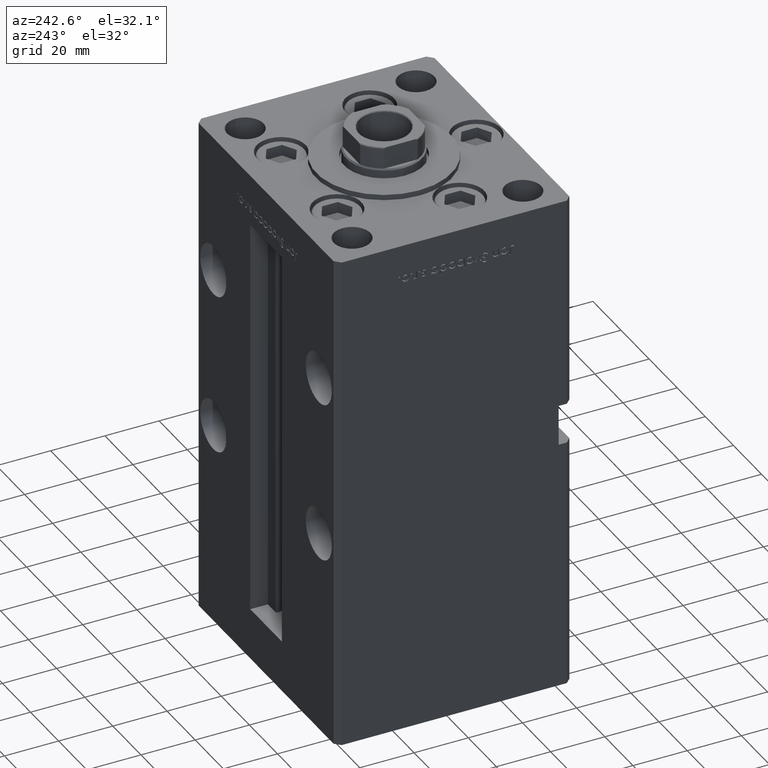
[diagram: clean part render]
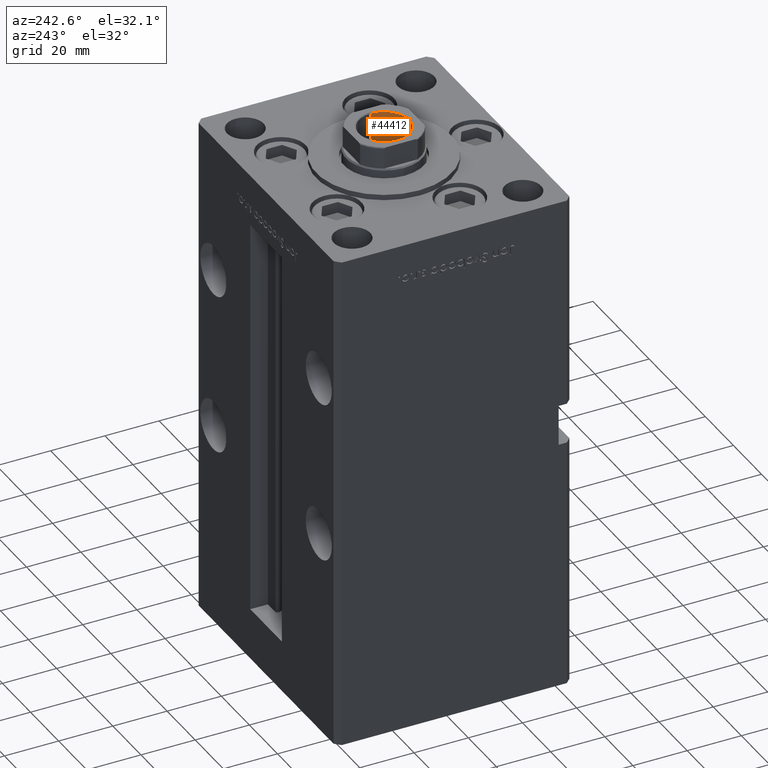
[diagram: same view with one face highlighted and labeled with its STEP entity id]
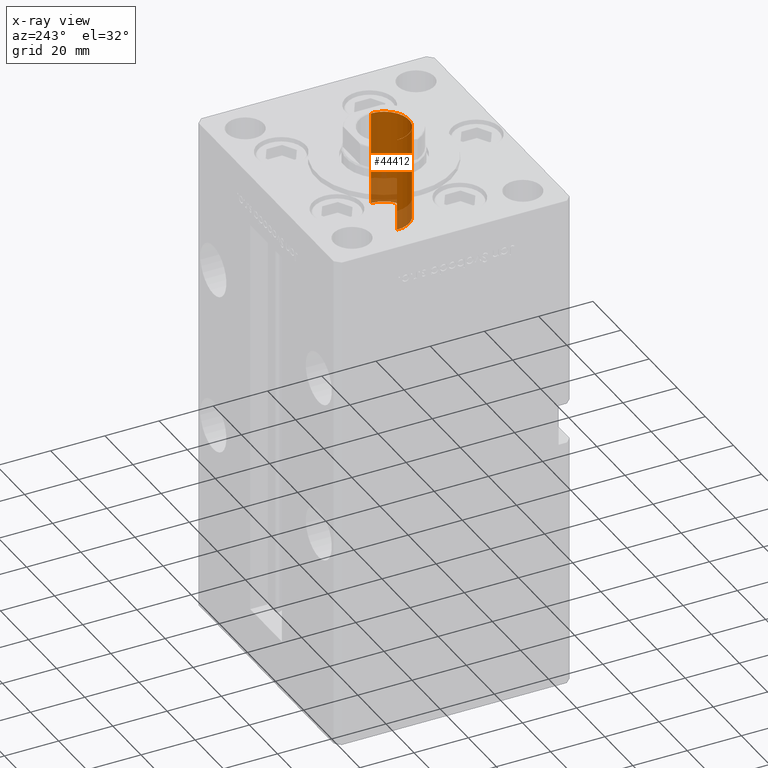
[diagram: x-ray of the same camera — body ghosted, the highlighted face saturated]
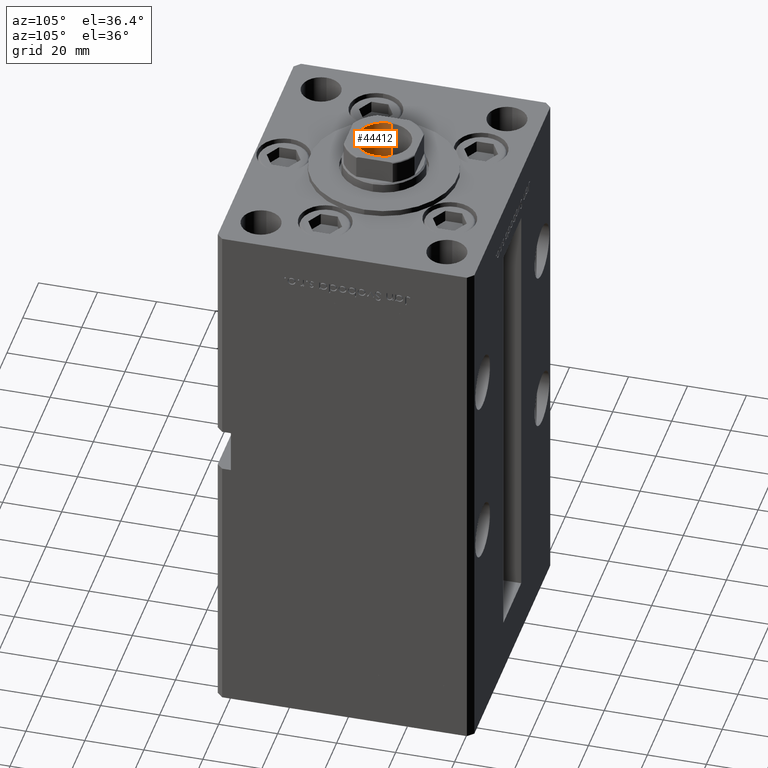
[diagram: same view with one face highlighted and labeled with its STEP entity id]
A machine part, auxiliary view. The second image highlights one B-rep face of the part: STEP entity #44412.
The next image is the same camera in x-ray: the body ghosted, the highlighted face saturated — about 24% of this face is hidden behind the body in this view.
A second angle (auxiliary view) of the same face is appended — the face is thin or edge-on in the first view.
In plain terms, the highlighted cylindrical surface (edge-blend (fillet) strip) has radius 9.25 mm, axis along (0, 0, 1).
Its self-contained STEP definition (entity closure, byte-faithful):
#1733 = AXIS2_PLACEMENT_3D ( 'NONE', #29848, #13452, #21526 ) ;
#1758 = ORIENTED_EDGE ( 'NONE', *, *, #10941, .F. ) ;
#5251 = DIRECTION ( 'NONE',  ( -0.000000000000000000, -0.000000000000000000, 1.000000000000000000 ) ) ;
#8266 = CARTESIAN_POINT ( 'NONE',  ( 9.249999999999994671, 0.000000000000000000, 130.2500000000000000 ) ) ;
#8280 = DIRECTION ( 'NONE',  ( -0.000000000000000000, -0.000000000000000000, 1.000000000000000000 ) ) ;
#8755 = CIRCLE ( 'NONE', #43060, 9.249999999999994671 ) ;
#9186 = LINE ( 'NONE', #26360, #12948 ) ;
#10595 = VERTEX_POINT ( 'NONE', #24952 ) ;
#10941 = EDGE_CURVE ( 'NONE', #39461, #38084, #23395, .T. ) ;
#12948 = VECTOR ( 'NONE', #25562, 1000.000000000000000 ) ;
#13452 = DIRECTION ( 'NONE',  ( 0.000000000000000000, 0.000000000000000000, 1.000000000000000000 ) ) ;
#15554 = CARTESIAN_POINT ( 'NONE',  ( 0.000000000000000000, 0.000000000000000000, 165.2500000000000000 ) ) ;
#15857 = CARTESIAN_POINT ( 'NONE',  ( 9.249999999999996447, 0.000000000000000000, 165.2500000000000000 ) ) ;
#19569 = CYLINDRICAL_SURFACE ( 'NONE', #21254, 9.249999999999996447 ) ;
#21254 = AXIS2_PLACEMENT_3D ( 'NONE', #15554, #8280, #45077 ) ;
#21526 = DIRECTION ( 'NONE',  ( 1.000000000000000000, 0.000000000000000000, 0.000000000000000000 ) ) ;
#23395 = LINE ( 'NONE', #15857, #43332 ) ;
#24398 = FACE_OUTER_BOUND ( 'NONE', #37288, .T. ) ;
#24903 = CIRCLE ( 'NONE', #1733, 9.249999999999996447 ) ;
#24952 = CARTESIAN_POINT ( 'NONE',  ( -9.249999999999996447, 1.132798289211301304E-15, 164.9499999999999886 ) ) ;
#25562 = DIRECTION ( 'NONE',  ( -0.000000000000000000, -0.000000000000000000, 1.000000000000000000 ) ) ;
#25852 = VERTEX_POINT ( 'NONE', #27417 ) ;
#25893 = ORIENTED_EDGE ( 'NONE', *, *, #37932, .T. ) ;
#26360 = CARTESIAN_POINT ( 'NONE',  ( -9.249999999999996447, 1.132798289211301304E-15, 165.2500000000000000 ) ) ;
#26896 = CARTESIAN_POINT ( 'NONE',  ( 9.249999999999996447, 0.000000000000000000, 164.9499999999999886 ) ) ;
#27387 = ORIENTED_EDGE ( 'NONE', *, *, #52855, .T. ) ;
#27417 = CARTESIAN_POINT ( 'NONE',  ( -9.249999999999994671, 1.132798289211300909E-15, 130.2500000000000000 ) ) ;
#29848 = CARTESIAN_POINT ( 'NONE',  ( 0.000000000000000000, 0.000000000000000000, 164.9499999999999886 ) ) ;
#35058 = ORIENTED_EDGE ( 'NONE', *, *, #39748, .F. ) ;
#37288 = EDGE_LOOP ( 'NONE', ( #35058, #25893, #27387, #1758 ) ) ;
#37932 = EDGE_CURVE ( 'NONE', #25852, #10595, #9186, .T. ) ;
#38084 = VERTEX_POINT ( 'NONE', #26896 ) ;
#39461 = VERTEX_POINT ( 'NONE', #8266 ) ;
#39748 = EDGE_CURVE ( 'NONE', #25852, #39461, #8755, .T. ) ;
#42030 = CARTESIAN_POINT ( 'NONE',  ( 0.000000000000000000, 0.000000000000000000, 130.2500000000000000 ) ) ;
#43060 = AXIS2_PLACEMENT_3D ( 'NONE', #42030, #5251, #49582 ) ;
#43332 = VECTOR ( 'NONE', #43796, 1000.000000000000000 ) ;
#43796 = DIRECTION ( 'NONE',  ( -0.000000000000000000, -0.000000000000000000, 1.000000000000000000 ) ) ;
#44412 = ADVANCED_FACE ( 'NONE', ( #24398 ), #19569, .F. ) ;
#45077 = DIRECTION ( 'NONE',  ( 1.000000000000000000, 0.000000000000000000, 0.000000000000000000 ) ) ;
#49582 = DIRECTION ( 'NONE',  ( 1.000000000000000000, 0.000000000000000000, 0.000000000000000000 ) ) ;
#52855 = EDGE_CURVE ( 'NONE', #10595, #38084, #24903, .T. ) ;